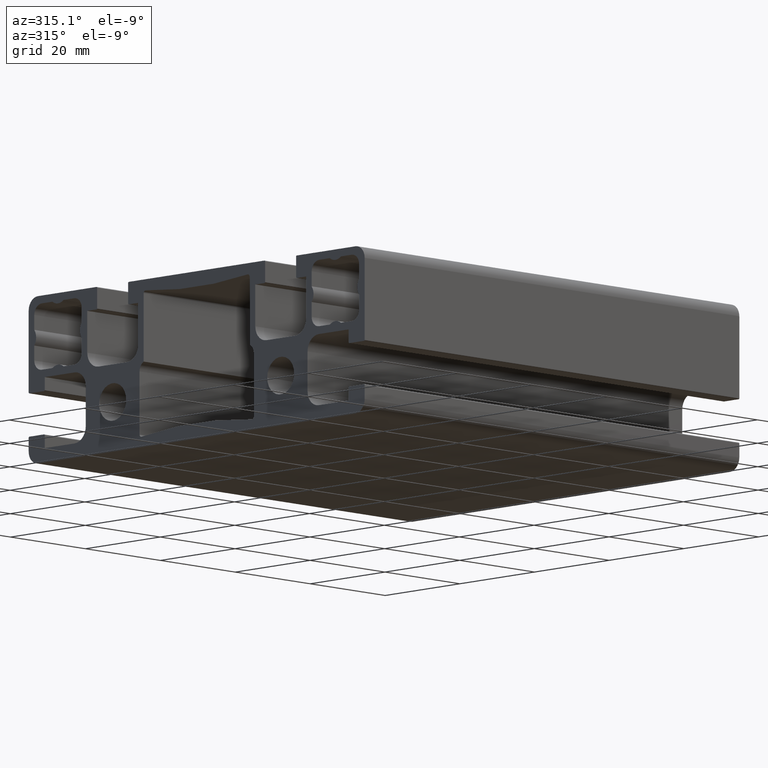
[diagram: clean part render]
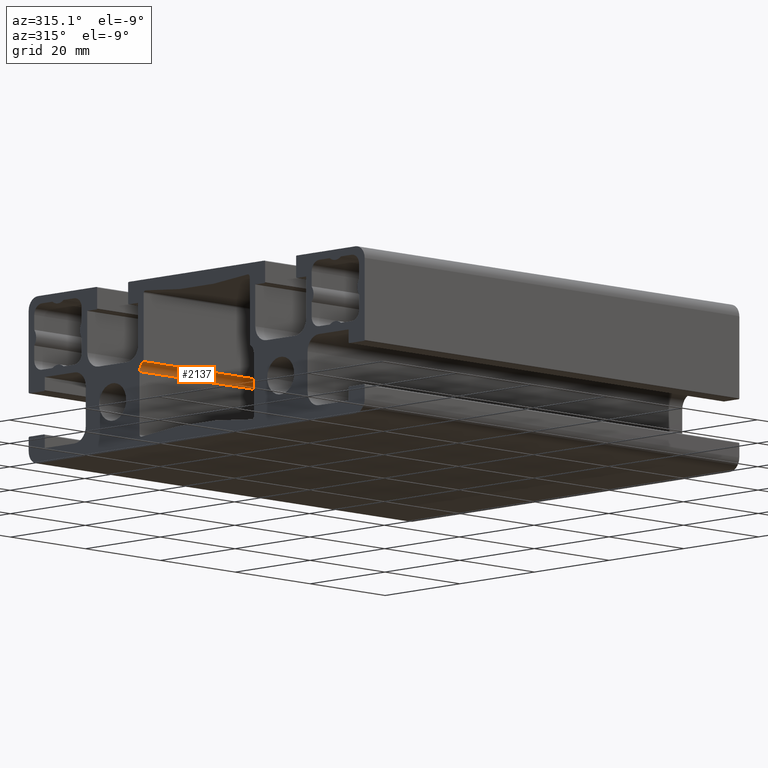
[diagram: same view with one face highlighted and labeled with its STEP entity id]
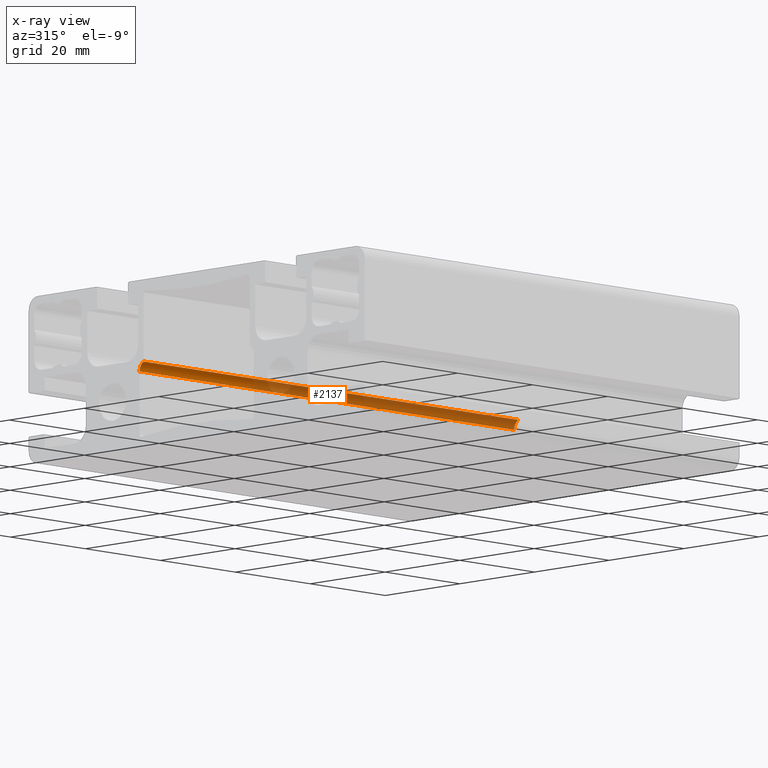
[diagram: x-ray of the same camera — body ghosted, the highlighted face saturated]
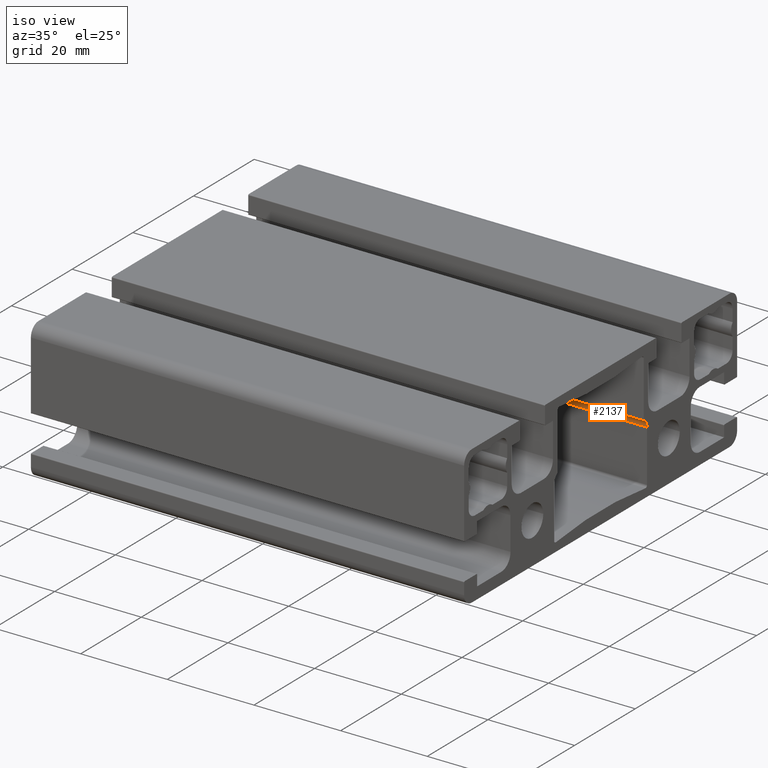
[diagram: same view with one face highlighted and labeled with its STEP entity id]
A machine part, auxiliary view. The second image highlights one B-rep face of the part: STEP entity #2137.
The next image is the same camera in x-ray: the body ghosted, the highlighted face saturated — about 70% of this face is hidden behind the body in this view.
A second angle (iso view) of the same face is appended — the face is thin or edge-on in the first view.
In plain terms, the highlighted cylindrical surface (edge-blend (fillet) strip) has radius 2 mm, axis along (1, 0, 0).
Its self-contained STEP definition (entity closure, byte-faithful):
#87=FACE_OUTER_BOUND('',#199,.T.);
#199=EDGE_LOOP('',(#1435,#1436,#1437,#1438));
#323=CIRCLE('',#2276,2.);
#324=CIRCLE('',#2277,2.);
#430=LINE('',#3175,#652);
#432=LINE('',#3181,#654);
#652=VECTOR('',#2512,10.);
#654=VECTOR('',#2518,10.);
#877=VERTEX_POINT('',#3172);
#878=VERTEX_POINT('',#3174);
#879=VERTEX_POINT('',#3178);
#880=VERTEX_POINT('',#3180);
#1100=EDGE_CURVE('',#878,#877,#430,.T.);
#1102=EDGE_CURVE('',#879,#877,#323,.T.);
#1103=EDGE_CURVE('',#880,#879,#432,.T.);
#1104=EDGE_CURVE('',#878,#880,#324,.T.);
#1435=ORIENTED_EDGE('',*,*,#1100,.T.);
#1436=ORIENTED_EDGE('',*,*,#1102,.F.);
#1437=ORIENTED_EDGE('',*,*,#1103,.F.);
#1438=ORIENTED_EDGE('',*,*,#1104,.F.);
#2082=CYLINDRICAL_SURFACE('',#2275,2.);
#2137=ADVANCED_FACE('',(#87),#2082,.F.);
#2275=AXIS2_PLACEMENT_3D('',#3177,#2514,#2515);
#2276=AXIS2_PLACEMENT_3D('',#3179,#2516,#2517);
#2277=AXIS2_PLACEMENT_3D('',#3182,#2519,#2520);
#2512=DIRECTION('',(-1.,0.,0.));
#2514=DIRECTION('center_axis',(1.,0.,0.));
#2515=DIRECTION('ref_axis',(0.,-1.,0.));
#2516=DIRECTION('center_axis',(1.,0.,0.));
#2517=DIRECTION('ref_axis',(0.,-1.,0.));
#2518=DIRECTION('',(-1.,0.,0.));
#2519=DIRECTION('center_axis',(-1.,0.,0.));
#2520=DIRECTION('ref_axis',(0.,-1.,0.));
#3172=CARTESIAN_POINT('',(-50.,14.2,0.3));
#3174=CARTESIAN_POINT('',(50.,14.2,0.3));
#3175=CARTESIAN_POINT('',(0.,14.2,0.3));
#3177=CARTESIAN_POINT('Origin',(0.,13.3,-1.48605710994918));
#3178=CARTESIAN_POINT('',(-50.,15.3,-1.48605710994918));
#3179=CARTESIAN_POINT('Origin',(-50.,13.3,-1.48605710994918));
#3180=CARTESIAN_POINT('',(50.,15.3,-1.48605710994918));
#3181=CARTESIAN_POINT('',(0.,15.3,-1.48605710994918));
#3182=CARTESIAN_POINT('Origin',(50.,13.3,-1.48605710994918));